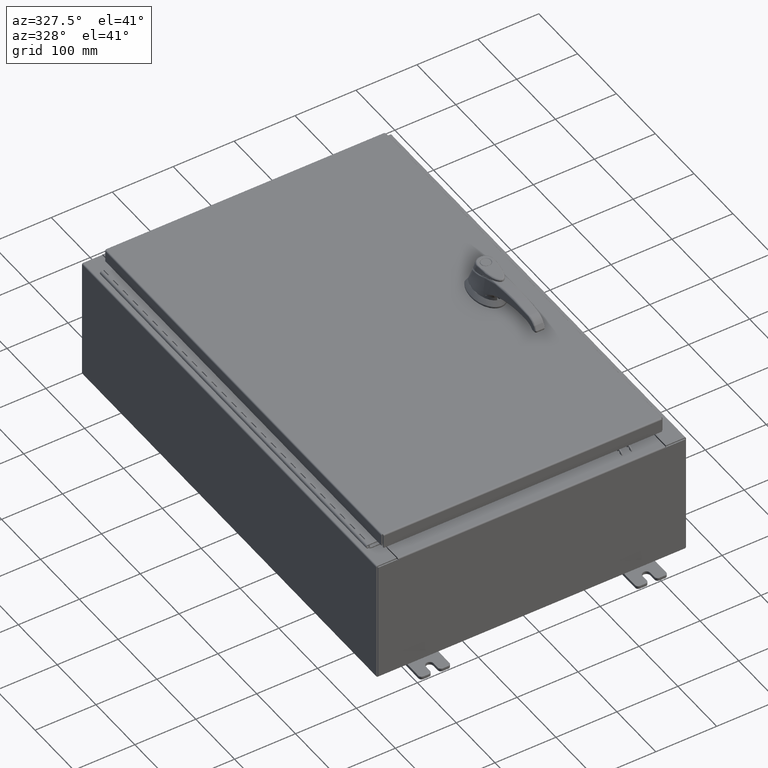
[diagram: clean part render]
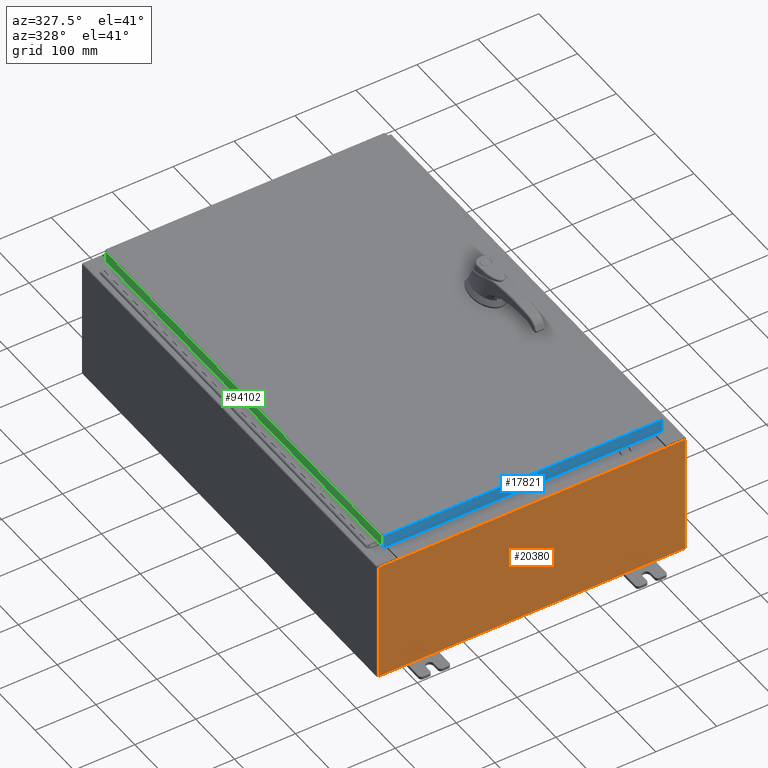
[diagram: same view with three faces highlighted in distinct colors, each labeled with its STEP entity id]
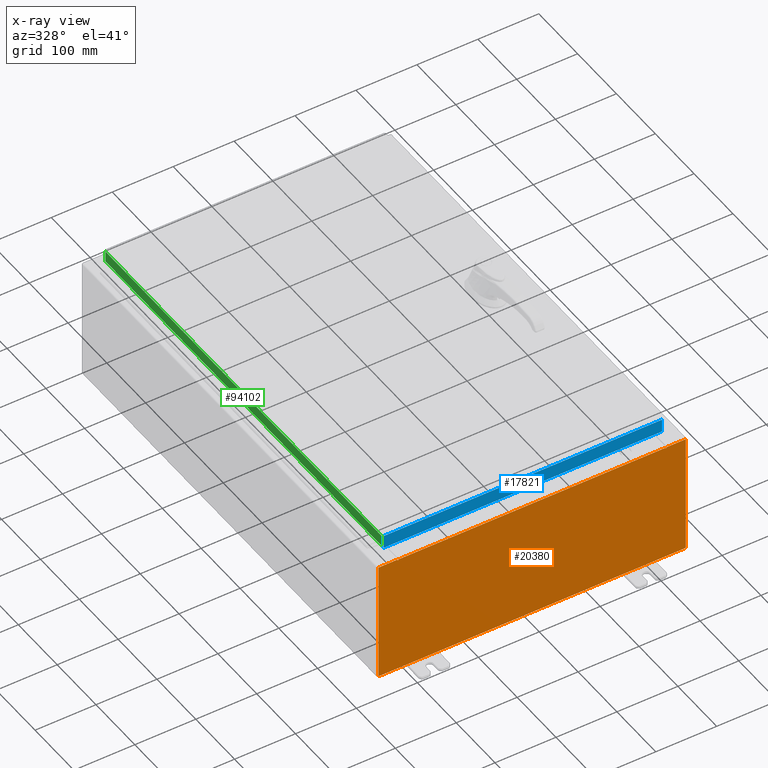
[diagram: x-ray of the same camera — body ghosted, the three highlighted faces saturated]
A machine part, auxiliary view with three faces highlighted in distinct colors.
The next image is the same camera in x-ray (body ghosted, the three faces saturated) — at least one of them is partly hidden behind the body in this view.
Their STEP definitions:

[orange] entity #20380 — the highlighted planar face has unit normal (-0, 1, -0).
#135 = ORIENTED_EDGE ( 'NONE', *, *, #117901, .T. ) ;
#502 = EDGE_CURVE ( 'NONE', #65194, #7993, #59922, .T. ) ;
#1268 = CARTESIAN_POINT ( 'NONE',  ( 8.637200000000000000, 0.0000000000000000000, 0.0000000000000000000 ) ) ;
#4533 = CARTESIAN_POINT ( 'NONE',  ( -8.637199999999996400, 1.024442997624098700E-016, 3.912299999999999700 ) ) ;
#5471 = CARTESIAN_POINT ( 'NONE',  ( -9.925300000000000000, 0.0000000000000000000, 3.925299999999999600 ) ) ;
#5552 = CARTESIAN_POINT ( 'NONE',  ( 8.674550000000001800, 0.0000000000000000000, 3.925299999999999600 ) ) ;
#7744 = DIRECTION ( 'NONE',  ( 0.0000000000000000000, -1.000000000000000000, 0.0000000000000000000 ) ) ;
#7993 = VERTEX_POINT ( 'NONE', #13113 ) ;
#8560 = EDGE_CURVE ( 'NONE', #76489, #7993, #33451, .T. ) ;
#9132 = ORIENTED_EDGE ( 'NONE', *, *, #21731, .F. ) ;
#9424 = ORIENTED_EDGE ( 'NONE', *, *, #114510, .T. ) ;
#9494 = VERTEX_POINT ( 'NONE', #5552 ) ;
#10636 = AXIS2_PLACEMENT_3D ( 'NONE', #40323, #104219, #49502 ) ;
#11392 = VECTOR ( 'NONE', #55616, 39.37007874015748100 ) ;
#11759 = ORIENTED_EDGE ( 'NONE', *, *, #84901, .F. ) ;
#11843 = LINE ( 'NONE', #24071, #33192 ) ;
#12303 = VECTOR ( 'NONE', #35406, 39.37007874015748100 ) ;
#12655 = EDGE_CURVE ( 'NONE', #103227, #85889, #31523, .T. ) ;
#13113 = CARTESIAN_POINT ( 'NONE',  ( -8.674549999999996400, 0.0000000000000000000, 3.925299999999999600 ) ) ;
#13225 = ORIENTED_EDGE ( 'NONE', *, *, #39524, .F. ) ;
#16269 = DIRECTION ( 'NONE',  ( 0.0000000000000000000, 0.0000000000000000000, -1.000000000000000000 ) ) ;
#18517 = LINE ( 'NONE', #32864, #88467 ) ;
#20380 = ADVANCED_FACE ( 'NONE', ( #113968 ), #62476, .F. ) ;
#21731 = EDGE_CURVE ( 'NONE', #9494, #103227, #82254, .T. ) ;
#24071 = CARTESIAN_POINT ( 'NONE',  ( -9.925300000000000000, 0.0000000000000000000, -3.925299999999999600 ) ) ;
#25688 = ORIENTED_EDGE ( 'NONE', *, *, #8560, .F. ) ;
#26140 = VECTOR ( 'NONE', #63702, 39.37007874015748100 ) ;
#28584 = VECTOR ( 'NONE', #58624, 39.37007874015748100 ) ;
#29264 = VECTOR ( 'NONE', #47290, 39.37007874015748100 ) ;
#31523 = CIRCLE ( 'NONE', #10636, 0.01867500000000003900 ) ;
#31923 = CARTESIAN_POINT ( 'NONE',  ( 8.637200000000000000, 0.0000000000000000000, 3.912299999999999700 ) ) ;
#32093 = LINE ( 'NONE', #1268, #29264 ) ;
#32864 = CARTESIAN_POINT ( 'NONE',  ( -9.925300000000000000, 0.0000000000000000000, 3.925299999999999600 ) ) ;
#32883 = EDGE_CURVE ( 'NONE', #85889, #54626, #32093, .T. ) ;
#33192 = VECTOR ( 'NONE', #69943, 39.37007874015748100 ) ;
#33451 = LINE ( 'NONE', #90905, #60637 ) ;
#35406 = DIRECTION ( 'NONE',  ( -6.510859170600007400E-014, 0.0000000000000000000, -1.000000000000000000 ) ) ;
#35684 = VECTOR ( 'NONE', #16269, 39.37007874015748100 ) ;
#36212 = DIRECTION ( 'NONE',  ( 0.0000000000000000000, 0.0000000000000000000, 1.000000000000000000 ) ) ;
#36556 = CARTESIAN_POINT ( 'NONE',  ( -8.637199999999996400, -0.0000000000000000000, 3.874949999999999700 ) ) ;
#36777 = CARTESIAN_POINT ( 'NONE',  ( -8.655874999999996400, 0.0000000000000000000, 3.874949999999999700 ) ) ;
#37281 = ORIENTED_EDGE ( 'NONE', *, *, #502, .T. ) ;
#37678 = CARTESIAN_POINT ( 'NONE',  ( -8.674549999999996400, 0.0000000000000000000, 3.874949999999999700 ) ) ;
#39524 = EDGE_CURVE ( 'NONE', #109336, #76489, #48976, .T. ) ;
#40323 = CARTESIAN_POINT ( 'NONE',  ( 8.655875000000000000, 0.0000000000000000000, 3.874949999999999700 ) ) ;
#43412 = CARTESIAN_POINT ( 'NONE',  ( 9.925300000000000000, 0.0000000000000000000, 3.925299999999999600 ) ) ;
#45936 = DIRECTION ( 'NONE',  ( 0.0000000000000000000, 0.0000000000000000000, -1.000000000000000000 ) ) ;
#47290 = DIRECTION ( 'NONE',  ( 0.0000000000000000000, 0.0000000000000000000, 1.000000000000000000 ) ) ;
#48976 = CIRCLE ( 'NONE', #86845, 0.01867500000000003900 ) ;
#49502 = DIRECTION ( 'NONE',  ( 0.0000000000000000000, 0.0000000000000000000, -1.000000000000000000 ) ) ;
#52047 = CARTESIAN_POINT ( 'NONE',  ( -9.925300000000000000, 0.0000000000000000000, -3.925299999999999600 ) ) ;
#53175 = CARTESIAN_POINT ( 'NONE',  ( 8.674550000000000000, 0.0000000000000000000, 3.874949999999999700 ) ) ;
#53280 = LINE ( 'NONE', #108853, #26140 ) ;
#54626 = VERTEX_POINT ( 'NONE', #31923 ) ;
#55616 = DIRECTION ( 'NONE',  ( 1.000000000000000000, 0.0000000000000000000, 0.0000000000000000000 ) ) ;
#58624 = DIRECTION ( 'NONE',  ( 1.000000000000000000, 0.0000000000000000000, 0.0000000000000000000 ) ) ;
#59922 = LINE ( 'NONE', #84526, #11392 ) ;
#59945 = LINE ( 'NONE', #43412, #35684 ) ;
#60637 = VECTOR ( 'NONE', #36212, 39.37007874015748100 ) ;
#61101 = EDGE_CURVE ( 'NONE', #106809, #65194, #18517, .T. ) ;
#62072 = CARTESIAN_POINT ( 'NONE',  ( 0.0000000000000000000, 0.0000000000000000000, 0.0000000000000000000 ) ) ;
#62426 = ORIENTED_EDGE ( 'NONE', *, *, #12655, .F. ) ;
#62476 = PLANE ( 'NONE',  #115958 ) ;
#63702 = DIRECTION ( 'NONE',  ( 0.0000000000000000000, 0.0000000000000000000, -1.000000000000000000 ) ) ;
#65194 = VERTEX_POINT ( 'NONE', #5471 ) ;
#66155 = VERTEX_POINT ( 'NONE', #4533 ) ;
#67811 = CARTESIAN_POINT ( 'NONE',  ( -9.925300000000000000, 0.0000000000000000000, 3.925299999999999600 ) ) ;
#69943 = DIRECTION ( 'NONE',  ( -1.000000000000000000, -0.0000000000000000000, -0.0000000000000000000 ) ) ;
#71592 = DIRECTION ( 'NONE',  ( 0.0000000000000000000, -0.0000000000000000000, -1.000000000000000000 ) ) ;
#74230 = LINE ( 'NONE', #67811, #28584 ) ;
#76489 = VERTEX_POINT ( 'NONE', #37678 ) ;
#78902 = LINE ( 'NONE', #116998, #100432 ) ;
#82254 = LINE ( 'NONE', #99308, #12303 ) ;
#82897 = VERTEX_POINT ( 'NONE', #111207 ) ;
#83781 = ORIENTED_EDGE ( 'NONE', *, *, #117682, .T. ) ;
#84526 = CARTESIAN_POINT ( 'NONE',  ( -9.925300000000000000, 0.0000000000000000000, 3.925299999999999600 ) ) ;
#84846 = ORIENTED_EDGE ( 'NONE', *, *, #61101, .T. ) ;
#84901 = EDGE_CURVE ( 'NONE', #66155, #109336, #53280, .T. ) ;
#85188 = EDGE_CURVE ( 'NONE', #100687, #106809, #11843, .T. ) ;
#85889 = VERTEX_POINT ( 'NONE', #88400 ) ;
#86845 = AXIS2_PLACEMENT_3D ( 'NONE', #36777, #100653, #45936 ) ;
#88400 = CARTESIAN_POINT ( 'NONE',  ( 8.637200000000000000, 0.0000000000000000000, 3.874949999999999700 ) ) ;
#88467 = VECTOR ( 'NONE', #96799, 39.37007874015748100 ) ;
#90905 = CARTESIAN_POINT ( 'NONE',  ( -8.674549999999996400, -0.0000000000000000000, 0.0000000000000000000 ) ) ;
#92090 = ORIENTED_EDGE ( 'NONE', *, *, #85188, .T. ) ;
#96799 = DIRECTION ( 'NONE',  ( -0.0000000000000000000, -0.0000000000000000000, 1.000000000000000000 ) ) ;
#96838 = EDGE_LOOP ( 'NONE', ( #25688, #13225, #11759, #9424, #107206, #62426, #9132, #83781, #135, #92090, #84846, #37281 ) ) ;
#98527 = DIRECTION ( 'NONE',  ( 1.000000000000000000, 0.0000000000000000000, 0.0000000000000000000 ) ) ;
#99308 = CARTESIAN_POINT ( 'NONE',  ( 8.674549999999747700, -0.0000000000000000000, -5.647877341832665300E-013 ) ) ;
#100432 = VECTOR ( 'NONE', #98527, 39.37007874015748100 ) ;
#100653 = DIRECTION ( 'NONE',  ( -0.0000000000000000000, 1.000000000000000000, -0.0000000000000000000 ) ) ;
#100687 = VERTEX_POINT ( 'NONE', #113853 ) ;
#103227 = VERTEX_POINT ( 'NONE', #53175 ) ;
#104219 = DIRECTION ( 'NONE',  ( -0.0000000000000000000, 1.000000000000000000, -0.0000000000000000000 ) ) ;
#106809 = VERTEX_POINT ( 'NONE', #52047 ) ;
#107206 = ORIENTED_EDGE ( 'NONE', *, *, #32883, .F. ) ;
#108853 = CARTESIAN_POINT ( 'NONE',  ( -8.637199999999996400, -0.0000000000000000000, 0.0000000000000000000 ) ) ;
#109336 = VERTEX_POINT ( 'NONE', #36556 ) ;
#111207 = CARTESIAN_POINT ( 'NONE',  ( 9.925300000000000000, 0.0000000000000000000, 3.925299999999999600 ) ) ;
#113853 = CARTESIAN_POINT ( 'NONE',  ( 9.925300000000000000, 0.0000000000000000000, -3.925299999999999600 ) ) ;
#113968 = FACE_OUTER_BOUND ( 'NONE', #96838, .T. ) ;
#114510 = EDGE_CURVE ( 'NONE', #66155, #54626, #78902, .T. ) ;
#115958 = AXIS2_PLACEMENT_3D ( 'NONE', #62072, #7744, #71592 ) ;
#116998 = CARTESIAN_POINT ( 'NONE',  ( -8.637200000000000000, 1.024442997624098700E-016, 3.912299999999999700 ) ) ;
#117682 = EDGE_CURVE ( 'NONE', #9494, #82897, #74230, .T. ) ;
#117901 = EDGE_CURVE ( 'NONE', #82897, #100687, #59945, .T. ) ;

[blue] entity #17821 — the highlighted planar face has unit normal (0, 1, -0).
#2285 = VERTEX_POINT ( 'NONE', #89004 ) ;
#5772 = DIRECTION ( 'NONE',  ( -1.000000000000000000, 1.203722403024570700E-016, 1.203722403024571000E-016 ) ) ;
#8249 = FACE_OUTER_BOUND ( 'NONE', #111732, .T. ) ;
#14451 = VERTEX_POINT ( 'NONE', #88496 ) ;
#14647 = CARTESIAN_POINT ( 'NONE',  ( 8.989157864376270600, -14.09400000000000100, -0.07469999999999980800 ) ) ;
#14777 = VERTEX_POINT ( 'NONE', #64956 ) ;
#15009 = CARTESIAN_POINT ( 'NONE',  ( 9.078000000000001200, -14.09400000000000300, -0.9376999999999997600 ) ) ;
#17821 = ADVANCED_FACE ( 'NONE', ( #8249 ), #61931, .F. ) ;
#20970 = CARTESIAN_POINT ( 'NONE',  ( 8.989157864376270600, -14.09400000000000300, -0.9376999999999997600 ) ) ;
#28750 = EDGE_CURVE ( 'NONE', #2285, #14451, #109972, .T. ) ;
#35263 = DIRECTION ( 'NONE',  ( 1.000000000000000000, -1.203722403024567800E-016, -7.444398091725593800E-046 ) ) ;
#35674 = CARTESIAN_POINT ( 'NONE',  ( 9.078000000000001200, -14.09400000000000100, -0.08770000000000008300 ) ) ;
#43927 = DIRECTION ( 'NONE',  ( 0.0000000000000000000, 2.532419924601866100E-015, 1.000000000000000000 ) ) ;
#45421 = ORIENTED_EDGE ( 'NONE', *, *, #102379, .F. ) ;
#51486 = ORIENTED_EDGE ( 'NONE', *, *, #81156, .T. ) ;
#57301 = LINE ( 'NONE', #15009, #97267 ) ;
#61931 = PLANE ( 'NONE',  #111259 ) ;
#62771 = VECTOR ( 'NONE', #78455, 39.37007874015748100 ) ;
#64956 = CARTESIAN_POINT ( 'NONE',  ( -8.989157864376265300, -14.09400000000000100, -0.9376999999999976500 ) ) ;
#70247 = DIRECTION ( 'NONE',  ( 0.0000000000000000000, -2.532419924601866100E-015, -1.000000000000000000 ) ) ;
#78455 = DIRECTION ( 'NONE',  ( 0.0000000000000000000, -2.532419924601866100E-015, -1.000000000000000000 ) ) ;
#80225 = CARTESIAN_POINT ( 'NONE',  ( -1.696526354822825600E-015, -14.09399999999999900, 3.595274007335028100E-014 ) ) ;
#81156 = EDGE_CURVE ( 'NONE', #2285, #14777, #96367, .T. ) ;
#81519 = ORIENTED_EDGE ( 'NONE', *, *, #86947, .F. ) ;
#82730 = VECTOR ( 'NONE', #35263, 39.37007874015748100 ) ;
#86947 = EDGE_CURVE ( 'NONE', #96606, #14777, #57301, .T. ) ;
#88227 = CARTESIAN_POINT ( 'NONE',  ( -8.989157864376265300, -14.09399999999999900, 3.595274007335028100E-014 ) ) ;
#88496 = CARTESIAN_POINT ( 'NONE',  ( 8.989157864376256400, -14.09400000000000100, -0.08770000000000008300 ) ) ;
#89004 = CARTESIAN_POINT ( 'NONE',  ( -8.989157864376265300, -14.09399999999999900, -0.08770000000000008300 ) ) ;
#90673 = VECTOR ( 'NONE', #70247, 39.37007874015748100 ) ;
#96367 = LINE ( 'NONE', #88227, #90673 ) ;
#96606 = VERTEX_POINT ( 'NONE', #20970 ) ;
#97267 = VECTOR ( 'NONE', #5772, 39.37007874015748100 ) ;
#98561 = ORIENTED_EDGE ( 'NONE', *, *, #28750, .F. ) ;
#98643 = DIRECTION ( 'NONE',  ( 1.203722403024567800E-016, 1.000000000000000000, -2.532419924601866100E-015 ) ) ;
#102379 = EDGE_CURVE ( 'NONE', #14451, #96606, #108538, .T. ) ;
#108538 = LINE ( 'NONE', #14647, #62771 ) ;
#109972 = LINE ( 'NONE', #35674, #82730 ) ;
#111259 = AXIS2_PLACEMENT_3D ( 'NONE', #80225, #98643, #43927 ) ;
#111732 = EDGE_LOOP ( 'NONE', ( #98561, #51486, #81519, #45421 ) ) ;

[green] entity #94102 — the highlighted planar face has unit normal (1, 0, -0).
#291 = DIRECTION ( 'NONE',  ( -3.034122441942816500E-015, 6.982962677686265900E-015, -1.000000000000000000 ) ) ;
#10313 = CARTESIAN_POINT ( 'NONE',  ( -9.077999999999997600, 14.00515786437626900, 1.256020718460122500E-013 ) ) ;
#16888 = VERTEX_POINT ( 'NONE', #92284 ) ;
#21209 = CARTESIAN_POINT ( 'NONE',  ( -9.077999999999999400, -14.00515786437626200, -0.7949999999999996000 ) ) ;
#22854 = DIRECTION ( 'NONE',  ( -4.379057701015054300E-047, 1.000000000000000000, 1.211441035930299800E-016 ) ) ;
#24044 = CARTESIAN_POINT ( 'NONE',  ( -9.077999999999997600, -14.09399999999999600, -0.08770000000000004200 ) ) ;
#24603 = LINE ( 'NONE', #10313, #73172 ) ;
#34771 = VERTEX_POINT ( 'NONE', #46612 ) ;
#35251 = VECTOR ( 'NONE', #78691, 39.37007874015748100 ) ;
#38675 = ORIENTED_EDGE ( 'NONE', *, *, #105126, .F. ) ;
#42667 = ORIENTED_EDGE ( 'NONE', *, *, #70186, .T. ) ;
#46612 = CARTESIAN_POINT ( 'NONE',  ( -9.077999999999997600, -14.00515786437626400, -0.08770000000000007000 ) ) ;
#47524 = VECTOR ( 'NONE', #22854, 39.37007874015748100 ) ;
#48188 = VERTEX_POINT ( 'NONE', #21209 ) ;
#50771 = FACE_OUTER_BOUND ( 'NONE', #74533, .T. ) ;
#57793 = VECTOR ( 'NONE', #291, 39.37007874015748100 ) ;
#70186 = EDGE_CURVE ( 'NONE', #16888, #91834, #24603, .T. ) ;
#73172 = VECTOR ( 'NONE', #74123, 39.37007874015748100 ) ;
#74123 = DIRECTION ( 'NONE',  ( -3.034122441942816500E-015, 6.982962677686265900E-015, -1.000000000000000000 ) ) ;
#74533 = EDGE_LOOP ( 'NONE', ( #38675, #42667, #118533, #81544 ) ) ;
#77529 = CARTESIAN_POINT ( 'NONE',  ( -9.077999999999999400, -14.09399999999999600, -0.7949999999999997100 ) ) ;
#78691 = DIRECTION ( 'NONE',  ( 3.675660434206577100E-031, -1.000000000000000000, -1.083515668565077200E-045 ) ) ;
#81339 = EDGE_CURVE ( 'NONE', #34771, #48188, #82054, .T. ) ;
#81544 = ORIENTED_EDGE ( 'NONE', *, *, #81339, .F. ) ;
#82054 = LINE ( 'NONE', #82211, #57793 ) ;
#82211 = CARTESIAN_POINT ( 'NONE',  ( -9.077999999999997600, -14.00515786437626500, -0.07469999999999976700 ) ) ;
#90065 = PLANE ( 'NONE',  #91652 ) ;
#91652 = AXIS2_PLACEMENT_3D ( 'NONE', #99272, #108092, #108499 ) ;
#91834 = VERTEX_POINT ( 'NONE', #111688 ) ;
#92284 = CARTESIAN_POINT ( 'NONE',  ( -9.077999999999997600, 14.00515786437626900, -0.08770000000000004200 ) ) ;
#93185 = LINE ( 'NONE', #77529, #47524 ) ;
#94102 = ADVANCED_FACE ( 'NONE', ( #50771 ), #90065, .F. ) ;
#99272 = CARTESIAN_POINT ( 'NONE',  ( -9.077999999999997600, -3.336764542172729700E-030, 2.780457718396846400E-014 ) ) ;
#105126 = EDGE_CURVE ( 'NONE', #16888, #34771, #111079, .T. ) ;
#108092 = DIRECTION ( 'NONE',  ( 1.000000000000000000, 3.675660434206576600E-031, -3.034122441942816500E-015 ) ) ;
#108499 = DIRECTION ( 'NONE',  ( -3.034122441942816500E-015, 0.0000000000000000000, -1.000000000000000000 ) ) ;
#111079 = LINE ( 'NONE', #24044, #35251 ) ;
#111688 = CARTESIAN_POINT ( 'NONE',  ( -9.077999999999999400, 14.00515786437627400, -0.7949999999999962700 ) ) ;
#115111 = EDGE_CURVE ( 'NONE', #48188, #91834, #93185, .T. ) ;
#118533 = ORIENTED_EDGE ( 'NONE', *, *, #115111, .F. ) ;